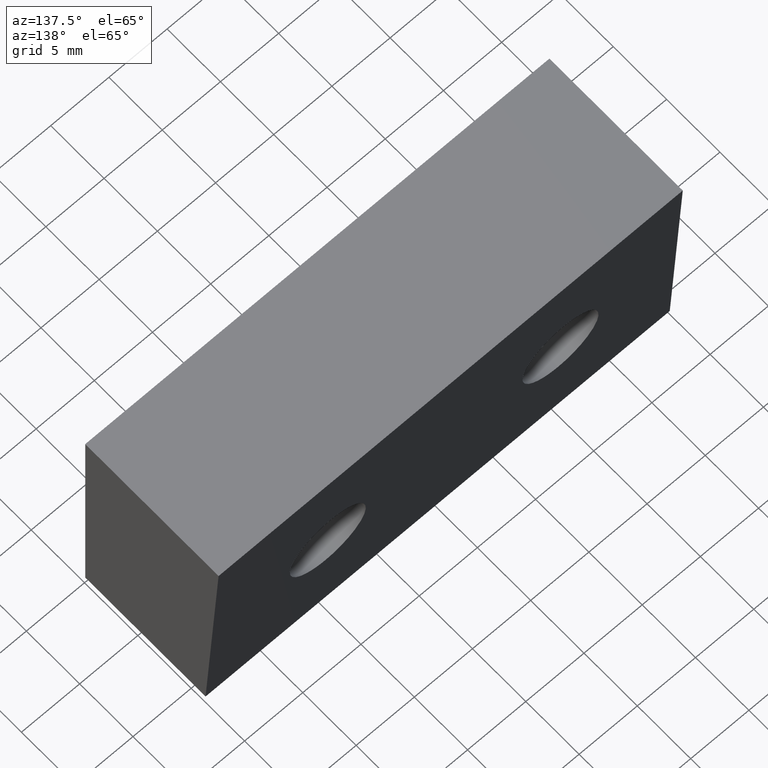
[diagram: clean part render]
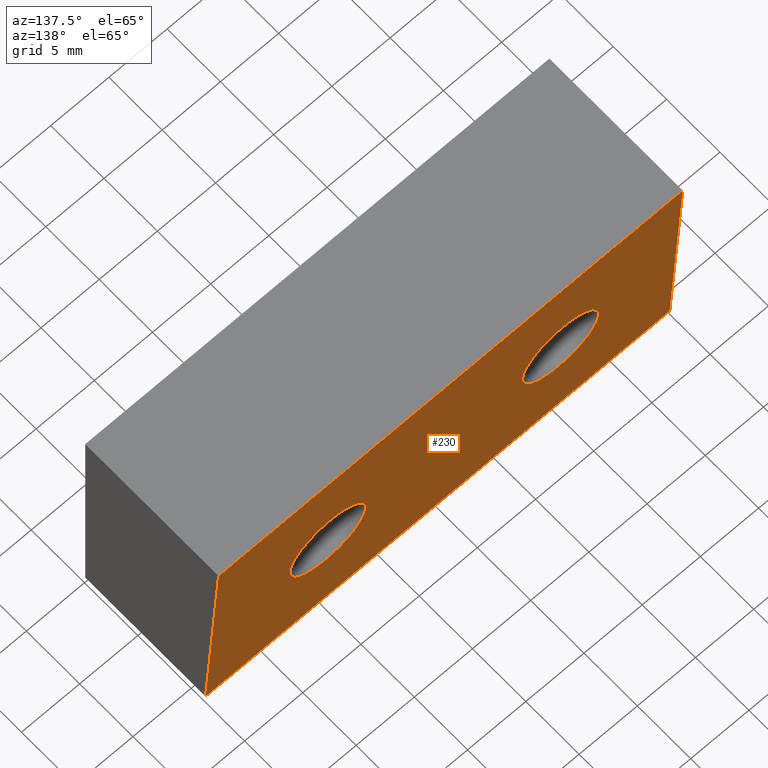
[diagram: same view with one face highlighted and labeled with its STEP entity id]
A machine part, auxiliary view. The second image highlights one B-rep face of the part: STEP entity #230.
In plain terms, the highlighted planar face has unit normal (0, -0.9981, 0.061).
Its self-contained STEP definition (entity closure, byte-faithful):
#13 = VECTOR ( 'NONE', #161, 39.37007874015748900 ) ;
#14 = LINE ( 'NONE', #162, #13 ) ;
#58 = LINE ( 'NONE', #114, #60 ) ;
#60 = VECTOR ( 'NONE', #119, 39.37007874015748100 ) ;
#65 =( BOUNDED_CURVE ( )  B_SPLINE_CURVE ( 3, ( #133, #143, #142, #141 ),
 .UNSPECIFIED., .F., .T. ) 
 B_SPLINE_CURVE_WITH_KNOTS ( ( 4, 4 ),
 ( 3.141592653589791300, 6.283185307179583600 ),
 .UNSPECIFIED. ) 
 CURVE ( )  GEOMETRIC_REPRESENTATION_ITEM ( )  RATIONAL_B_SPLINE_CURVE ( ( 1.000000000000000000, 0.3333333333333337000, 0.3333333333333337000, 1.000000000000000000 ) ) 
 REPRESENTATION_ITEM ( '' )  );
#67 =( BOUNDED_CURVE ( )  B_SPLINE_CURVE ( 3, ( #118, #117, #116, #115 ),
 .UNSPECIFIED., .F., .T. ) 
 B_SPLINE_CURVE_WITH_KNOTS ( ( 4, 4 ),
 ( 3.141592653589791300, 6.283185307179583600 ),
 .UNSPECIFIED. ) 
 CURVE ( )  GEOMETRIC_REPRESENTATION_ITEM ( )  RATIONAL_B_SPLINE_CURVE ( ( 1.000000000000000000, 0.3333333333333337000, 0.3333333333333337000, 1.000000000000000000 ) ) 
 REPRESENTATION_ITEM ( '' )  );
#68 =( BOUNDED_CURVE ( )  B_SPLINE_CURVE ( 3, ( #134, #139, #146, #147 ),
 .UNSPECIFIED., .F., .T. ) 
 B_SPLINE_CURVE_WITH_KNOTS ( ( 4, 4 ),
 ( -2.664535259100375700E-015, 3.141592653589791300 ),
 .UNSPECIFIED. ) 
 CURVE ( )  GEOMETRIC_REPRESENTATION_ITEM ( )  RATIONAL_B_SPLINE_CURVE ( ( 1.000000000000000000, 0.3333333333333330400, 0.3333333333333330400, 1.000000000000000000 ) ) 
 REPRESENTATION_ITEM ( '' )  );
#70 =( BOUNDED_CURVE ( )  B_SPLINE_CURVE ( 3, ( #148, #136, #137, #75 ),
 .UNSPECIFIED., .F., .T. ) 
 B_SPLINE_CURVE_WITH_KNOTS ( ( 4, 4 ),
 ( -2.664535259100375700E-015, 3.141592653589791300 ),
 .UNSPECIFIED. ) 
 CURVE ( )  GEOMETRIC_REPRESENTATION_ITEM ( )  RATIONAL_B_SPLINE_CURVE ( ( 1.000000000000000000, 0.3333333333333330400, 0.3333333333333330400, 1.000000000000000000 ) ) 
 REPRESENTATION_ITEM ( '' )  );
#72 = CARTESIAN_POINT ( 'NONE',  ( 0.3934999999999999100, 0.8697919056601218800, -0.2650000000000000700 ) ) ;
#74 = CARTESIAN_POINT ( 'NONE',  ( -0.3935000000000000700, 0.8697919056601218800, -0.2649999999999999000 ) ) ;
#75 = CARTESIAN_POINT ( 'NONE',  ( -0.3935000000000000700, 0.8540731122814473300, -0.5220000000000000200 ) ) ;
#78 = PLANE ( 'NONE',  #264 ) ;
#83 = CARTESIAN_POINT ( 'NONE',  ( -0.7850000000000001400, 0.8860000000000000100, 0.0000000000000000000 ) ) ;
#84 = DIRECTION ( 'NONE',  ( -1.000000000000000000, -0.0000000000000000000, -0.0000000000000000000 ) ) ;
#89 = CARTESIAN_POINT ( 'NONE',  ( -1.573470656713212800, 0.8859999999999996800, 0.0000000000000000000 ) ) ;
#90 = DIRECTION ( 'NONE',  ( 1.538799405460079400E-016, -0.9981347984218670300, 0.06104853953485694900 ) ) ;
#91 = DIRECTION ( 'NONE',  ( 0.0000000000000000000, -0.06104853953485694200, -0.9981347984218669200 ) ) ;
#92 = VERTEX_POINT ( 'NONE', #221 ) ;
#114 = CARTESIAN_POINT ( 'NONE',  ( -0.7850000000000001400, 0.8859999999999997900, -7.407008177334549300E-018 ) ) ;
#115 = CARTESIAN_POINT ( 'NONE',  ( 0.3934999999999999100, 0.8697919056601218800, -0.2650000000000000700 ) ) ;
#116 = CARTESIAN_POINT ( 'NONE',  ( 0.1365000000000001800, 0.8697919056601217700, -0.2650000000000000700 ) ) ;
#117 = CARTESIAN_POINT ( 'NONE',  ( 0.1365000000000001500, 0.8540731122814472200, -0.5220000000000000200 ) ) ;
#118 = CARTESIAN_POINT ( 'NONE',  ( 0.3934999999999999100, 0.8540731122814473300, -0.5220000000000000200 ) ) ;
#119 = DIRECTION ( 'NONE',  ( 0.0000000000000000000, -0.06104853953485692800, -0.9981347984218669200 ) ) ;
#132 = DIRECTION ( 'NONE',  ( 1.000000000000000000, 1.541674939991119000E-016, -0.0000000000000000000 ) ) ;
#133 = CARTESIAN_POINT ( 'NONE',  ( -0.3935000000000000700, 0.8540731122814473300, -0.5220000000000000200 ) ) ;
#134 = CARTESIAN_POINT ( 'NONE',  ( 0.3934999999999999100, 0.8697919056601218800, -0.2650000000000000700 ) ) ;
#136 = CARTESIAN_POINT ( 'NONE',  ( -0.1364999999999997000, 0.8697919056601216600, -0.2649999999999998500 ) ) ;
#137 = CARTESIAN_POINT ( 'NONE',  ( -0.1364999999999997600, 0.8540731122814473300, -0.5220000000000002400 ) ) ;
#139 = CARTESIAN_POINT ( 'NONE',  ( 0.6505000000000001900, 0.8697919056601216600, -0.2650000000000000100 ) ) ;
#140 = CARTESIAN_POINT ( 'NONE',  ( -1.573470656713212800, 0.8378650179415684200, -0.7869999999999999200 ) ) ;
#141 = CARTESIAN_POINT ( 'NONE',  ( -0.3935000000000000700, 0.8697919056601218800, -0.2649999999999999000 ) ) ;
#142 = CARTESIAN_POINT ( 'NONE',  ( -0.6504999999999999700, 0.8697919056601217700, -0.2649999999999999600 ) ) ;
#143 = CARTESIAN_POINT ( 'NONE',  ( -0.6504999999999999700, 0.8540731122814472200, -0.5220000000000000200 ) ) ;
#146 = CARTESIAN_POINT ( 'NONE',  ( 0.6505000000000000800, 0.8540731122814473300, -0.5220000000000002400 ) ) ;
#147 = CARTESIAN_POINT ( 'NONE',  ( 0.3934999999999999100, 0.8540731122814473300, -0.5220000000000000200 ) ) ;
#148 = CARTESIAN_POINT ( 'NONE',  ( -0.3935000000000000700, 0.8697919056601218800, -0.2649999999999999000 ) ) ;
#152 = VERTEX_POINT ( 'NONE', #187 ) ;
#154 = VERTEX_POINT ( 'NONE', #183 ) ;
#161 = DIRECTION ( 'NONE',  ( 0.0000000000000000000, -0.06104853953485694200, -0.9981347984218669200 ) ) ;
#162 = CARTESIAN_POINT ( 'NONE',  ( 0.7849999999999999200, 0.8860000000000000100, 0.0000000000000000000 ) ) ;
#183 = CARTESIAN_POINT ( 'NONE',  ( 0.7849999999999999200, 0.8860000000000000100, 0.0000000000000000000 ) ) ;
#184 = CARTESIAN_POINT ( 'NONE',  ( 0.3934999999999999100, 0.8540731122814473300, -0.5220000000000000200 ) ) ;
#187 = CARTESIAN_POINT ( 'NONE',  ( 0.7849999999999999200, 0.8378650179415688700, -0.7869999999999999200 ) ) ;
#190 = CARTESIAN_POINT ( 'NONE',  ( -0.7850000000000001400, 0.8860000000000000100, 0.0000000000000000000 ) ) ;
#199 = VERTEX_POINT ( 'NONE', #184 ) ;
#205 = CARTESIAN_POINT ( 'NONE',  ( -0.7850000000000001400, 0.8378650179415685400, -0.7869999999999999200 ) ) ;
#209 = VERTEX_POINT ( 'NONE', #190 ) ;
#219 = VERTEX_POINT ( 'NONE', #74 ) ;
#221 = CARTESIAN_POINT ( 'NONE',  ( -0.3935000000000000700, 0.8540731122814473300, -0.5220000000000000200 ) ) ;
#223 = VERTEX_POINT ( 'NONE', #72 ) ;
#224 = VERTEX_POINT ( 'NONE', #205 ) ;
#230 = ADVANCED_FACE ( 'NONE', ( #301, #335, #314 ), #78, .F. ) ;
#237 = EDGE_CURVE ( 'NONE', #154, #209, #318, .T. ) ;
#238 = EDGE_CURVE ( 'NONE', #219, #92, #70, .T. ) ;
#240 = EDGE_CURVE ( 'NONE', #223, #199, #68, .T. ) ;
#242 = EDGE_CURVE ( 'NONE', #92, #219, #65, .T. ) ;
#243 = EDGE_CURVE ( 'NONE', #224, #152, #354, .T. ) ;
#247 = EDGE_CURVE ( 'NONE', #199, #223, #67, .T. ) ;
#250 = EDGE_CURVE ( 'NONE', #209, #224, #58, .T. ) ;
#254 = EDGE_CURVE ( 'NONE', #154, #152, #14, .T. ) ;
#264 = AXIS2_PLACEMENT_3D ( 'NONE', #89, #90, #91 ) ;
#301 = FACE_BOUND ( 'NONE', #323, .T. ) ;
#303 = ORIENTED_EDGE ( 'NONE', *, *, #254, .T. ) ;
#312 = ORIENTED_EDGE ( 'NONE', *, *, #250, .F. ) ;
#314 = FACE_BOUND ( 'NONE', #327, .T. ) ;
#318 = LINE ( 'NONE', #83, #357 ) ;
#323 = EDGE_LOOP ( 'NONE', ( #352, #361 ) ) ;
#324 = ORIENTED_EDGE ( 'NONE', *, *, #242, .F. ) ;
#327 = EDGE_LOOP ( 'NONE', ( #375, #324 ) ) ;
#335 = FACE_OUTER_BOUND ( 'NONE', #387, .T. ) ;
#337 = ORIENTED_EDGE ( 'NONE', *, *, #237, .F. ) ;
#352 = ORIENTED_EDGE ( 'NONE', *, *, #240, .F. ) ;
#354 = LINE ( 'NONE', #140, #386 ) ;
#357 = VECTOR ( 'NONE', #84, 39.37007874015748100 ) ;
#361 = ORIENTED_EDGE ( 'NONE', *, *, #247, .F. ) ;
#364 = ORIENTED_EDGE ( 'NONE', *, *, #243, .F. ) ;
#375 = ORIENTED_EDGE ( 'NONE', *, *, #238, .F. ) ;
#386 = VECTOR ( 'NONE', #132, 39.37007874015748100 ) ;
#387 = EDGE_LOOP ( 'NONE', ( #337, #303, #364, #312 ) ) ;